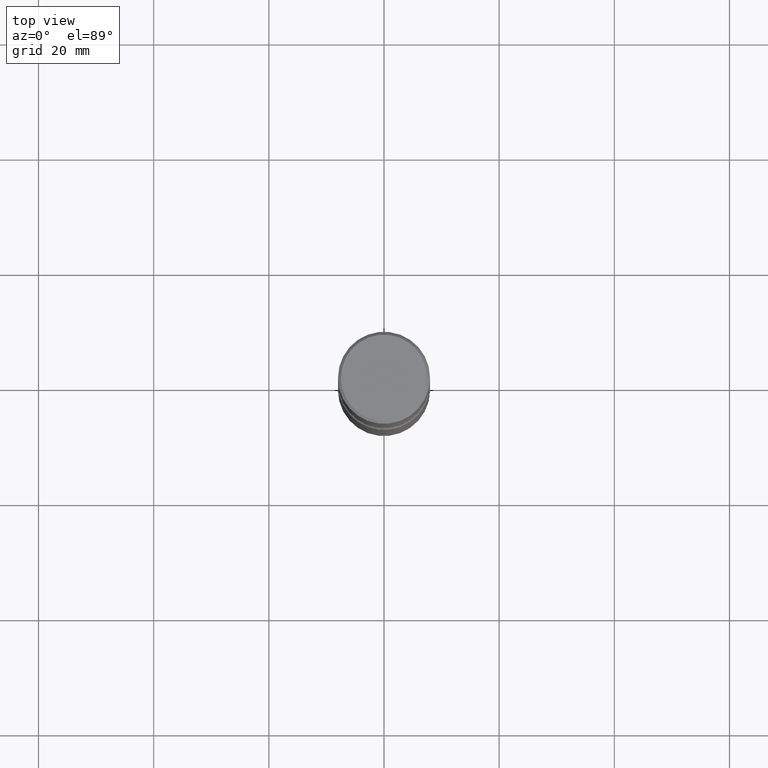
[diagram: clean part render]
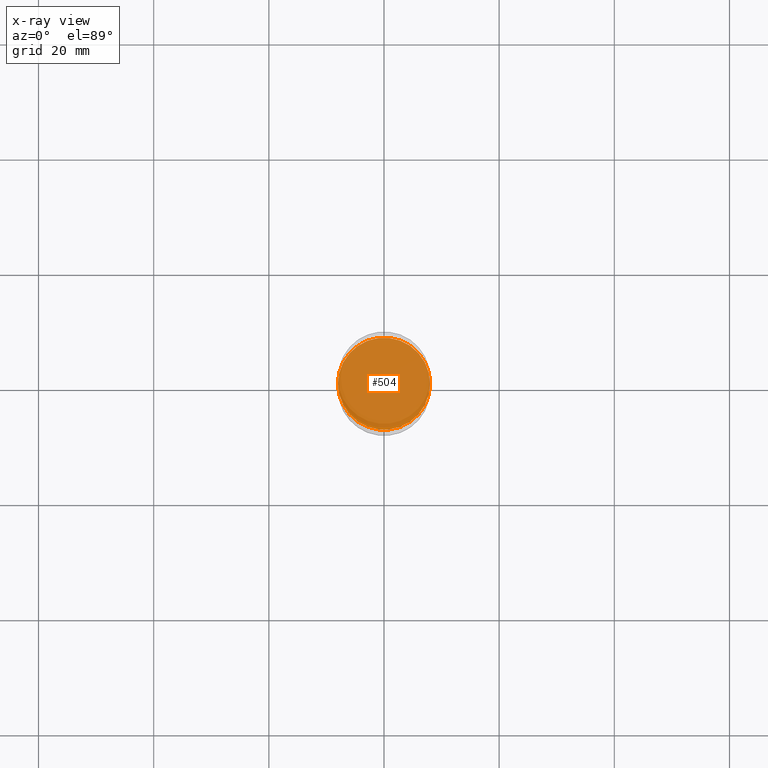
[diagram: x-ray — body ghosted, one internal face saturated and labeled with its STEP entity id]
A machine part, top view, then the same camera in x-ray: the body is ghosted and one INTERNAL B-rep face — a face not visible from any outside direction — is saturated and labeled: STEP entity #504.
In plain terms, the highlighted planar face has unit normal (0, -0, -1).
Its self-contained STEP definition (entity closure, byte-faithful):
#24 = PLANE ( 'NONE',  #146 ) ;
#100 = CIRCLE ( 'NONE', #412, 0.3149500000000002298 ) ;
#106 = DIRECTION ( 'NONE',  ( 2.438088387897960049E-29, -3.491481338843145188E-15, -1.000000000000000000 ) ) ;
#110 = AXIS2_PLACEMENT_3D ( 'NONE', #467, #354, #305 ) ;
#146 = AXIS2_PLACEMENT_3D ( 'NONE', #199, #106, #322 ) ;
#147 = DIRECTION ( 'NONE',  ( 1.000000000000000000, -6.982962677686264344E-15, 0.000000000000000000 ) ) ;
#171 = ORIENTED_EDGE ( 'NONE', *, *, #315, .T. ) ;
#178 = CARTESIAN_POINT ( 'NONE',  ( -0.3149500000000002298, -1.034003260283904930E-14, -2.401599999999999291 ) ) ;
#199 = CARTESIAN_POINT ( 'NONE',  ( 4.418398595452827857E-29, -1.046826783882976547E-14, -2.401599999999999291 ) ) ;
#289 = VERTEX_POINT ( 'NONE', #300 ) ;
#300 = CARTESIAN_POINT ( 'NONE',  ( 0.3149500000000002298, -1.058442567870298713E-14, -2.401599999999999291 ) ) ;
#305 = DIRECTION ( 'NONE',  ( 1.000000000000000000, -6.982962677686264344E-15, 0.000000000000000000 ) ) ;
#312 = ORIENTED_EDGE ( 'NONE', *, *, #481, .T. ) ;
#315 = EDGE_CURVE ( 'NONE', #525, #289, #521, .T. ) ;
#322 = DIRECTION ( 'NONE',  ( -1.000000000000000000, 6.982962677686265922E-15, -4.876176775795935793E-29 ) ) ;
#354 = DIRECTION ( 'NONE',  ( -2.445468806185136597E-29, 3.491481338843145583E-15, 1.000000000000000000 ) ) ;
#412 = AXIS2_PLACEMENT_3D ( 'NONE', #517, #475, #147 ) ;
#467 = CARTESIAN_POINT ( 'NONE',  ( 5.873037884934222106E-29, -8.385141583365695685E-15, -2.401599999999999291 ) ) ;
#475 = DIRECTION ( 'NONE',  ( -2.445468806185136597E-29, 3.491481338843145583E-15, 1.000000000000000000 ) ) ;
#481 = EDGE_CURVE ( 'NONE', #289, #525, #100, .T. ) ;
#504 = ADVANCED_FACE ( 'NONE', ( #552 ), #24, .F. ) ;
#506 = EDGE_LOOP ( 'NONE', ( #312, #171 ) ) ;
#517 = CARTESIAN_POINT ( 'NONE',  ( 5.873037884934222106E-29, -8.385141583365695685E-15, -2.401599999999999291 ) ) ;
#521 = CIRCLE ( 'NONE', #110, 0.3149500000000002298 ) ;
#525 = VERTEX_POINT ( 'NONE', #178 ) ;
#552 = FACE_OUTER_BOUND ( 'NONE', #506, .T. ) ;